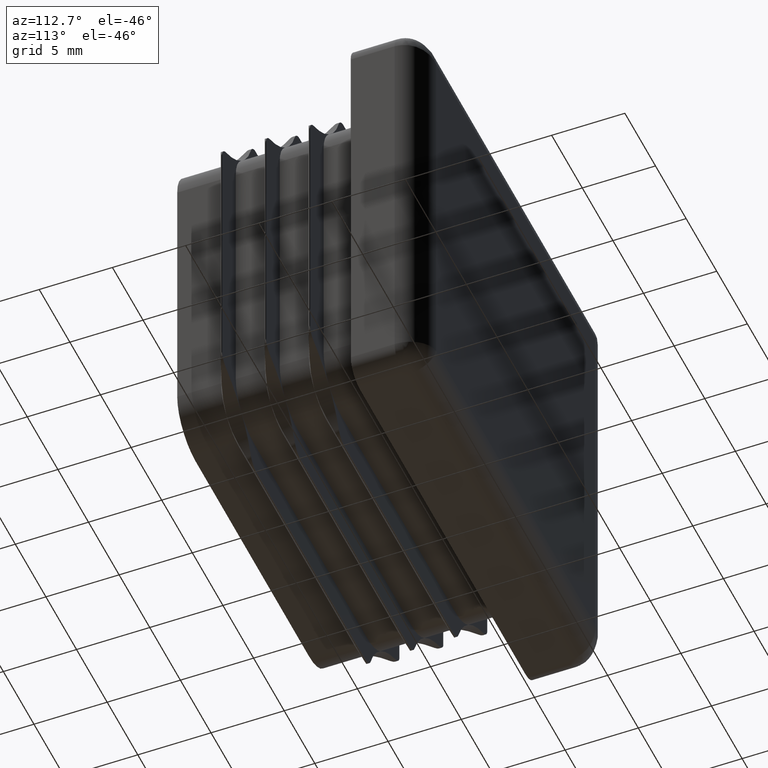
[diagram: clean part render]
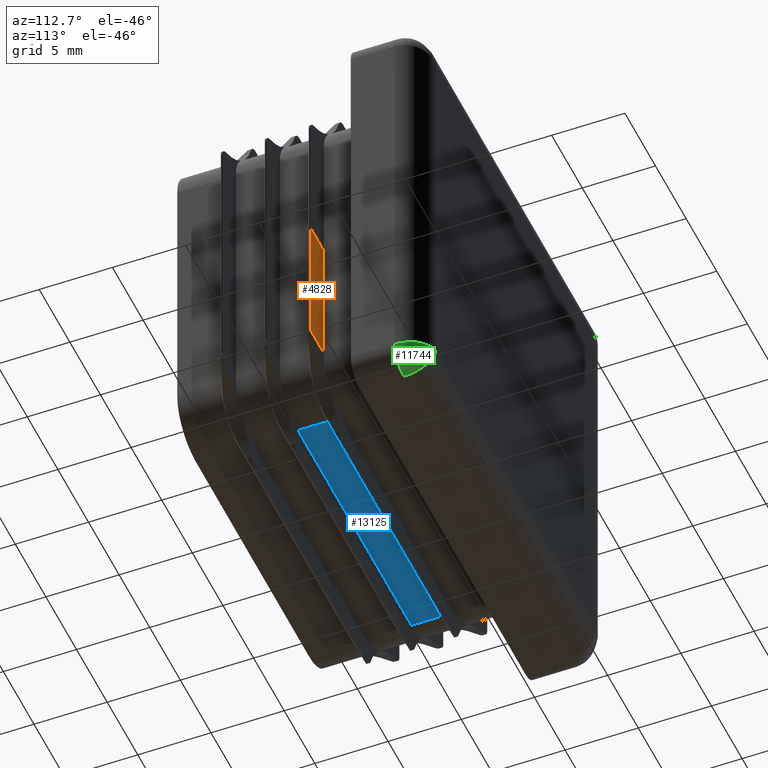
[diagram: same view with three faces highlighted in distinct colors, each labeled with its STEP entity id]
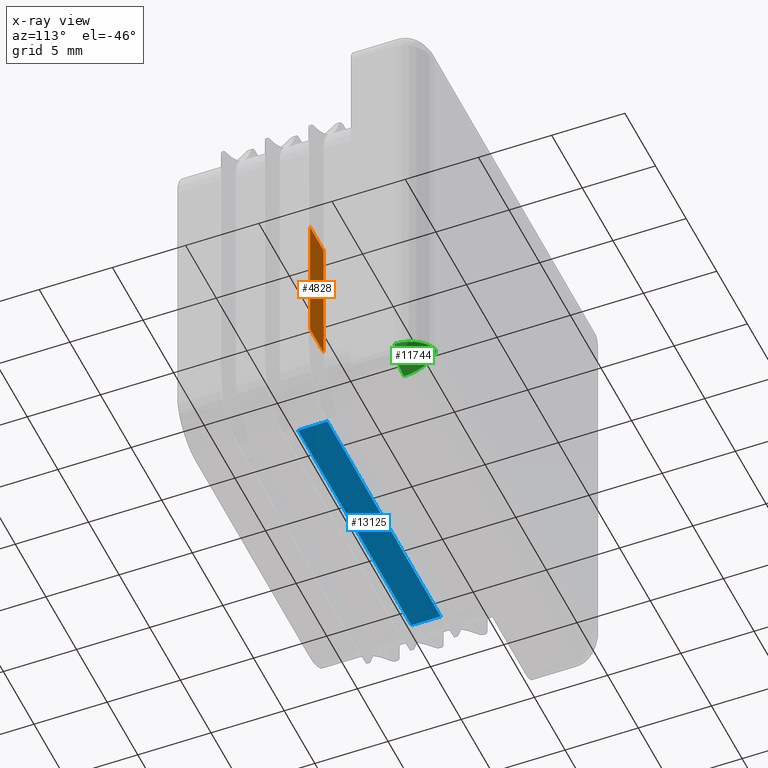
[diagram: x-ray of the same camera — body ghosted, the three highlighted faces saturated]
A machine part, auxiliary view with three faces highlighted in distinct colors.
The next image is the same camera in x-ray (body ghosted, the three faces saturated) — at least one of them is partly hidden behind the body in this view.
Their STEP definitions:

[orange] entity #4828 — the highlighted planar face has unit normal (0, -1, -0).
#811 = LINE ( 'NONE', #4182, #12951 ) ;
#1045 = CARTESIAN_POINT ( 'NONE',  ( 14.45000000000000462, -3.000000000000000888, 0.000000000000000000 ) ) ;
#1209 = VECTOR ( 'NONE', #6921, 1000.000000000000000 ) ;
#2073 = DIRECTION ( 'NONE',  ( 0.000000000000000000, 0.000000000000000000, -1.000000000000000000 ) ) ;
#2100 = CARTESIAN_POINT ( 'NONE',  ( 14.45000000000000817, -3.000000000000000888, -9.147225513525128804 ) ) ;
#2140 = CARTESIAN_POINT ( 'NONE',  ( 12.24999999999998046, -3.000000000000000888, 0.000000000000000000 ) ) ;
#2245 = CARTESIAN_POINT ( 'NONE',  ( 14.40981028720145574, -3.000000000000000888, -9.249999999999998224 ) ) ;
#2859 = LINE ( 'NONE', #18151, #10047 ) ;
#3771 = CARTESIAN_POINT ( 'NONE',  ( 12.24999999999998401, -3.000000000000000888, -9.249999999999998224 ) ) ;
#4182 = CARTESIAN_POINT ( 'NONE',  ( 14.45000000000000462, -3.000000000000000888, 0.000000000000000000 ) ) ;
#4506 = ORIENTED_EDGE ( 'NONE', *, *, #17898, .F. ) ;
#4828 = ADVANCED_FACE ( 'NONE', ( #18133 ), #19470, .F. ) ;
#5117 = ORIENTED_EDGE ( 'NONE', *, *, #13539, .T. ) ;
#5131 = EDGE_CURVE ( 'NONE', #8771, #5785, #18879, .T. ) ;
#5507 = LINE ( 'NONE', #2140, #9935 ) ;
#5785 = VERTEX_POINT ( 'NONE', #2245 ) ;
#6832 = DIRECTION ( 'NONE',  ( 0.000000000000000000, 1.000000000000000000, 0.000000000000000000 ) ) ;
#6921 = DIRECTION ( 'NONE',  ( -1.000000000000000000, 0.000000000000000000, 0.000000000000000000 ) ) ;
#8771 = VERTEX_POINT ( 'NONE', #2100 ) ;
#9282 = VERTEX_POINT ( 'NONE', #1045 ) ;
#9935 = VECTOR ( 'NONE', #11580, 1000.000000000000000 ) ;
#9997 = CARTESIAN_POINT ( 'NONE',  ( 12.24999999999998046, -3.000000000000000888, 0.000000000000000000 ) ) ;
#10047 = VECTOR ( 'NONE', #10341, 1000.000000000000000 ) ;
#10341 = DIRECTION ( 'NONE',  ( -1.000000000000000000, 0.000000000000000000, 0.000000000000000000 ) ) ;
#11378 = LINE ( 'NONE', #3771, #1209 ) ;
#11513 = AXIS2_PLACEMENT_3D ( 'NONE', #9997, #14699, #2073 ) ;
#11580 = DIRECTION ( 'NONE',  ( 4.688441826964345284E-16, 0.000000000000000000, -1.000000000000000000 ) ) ;
#11739 = EDGE_CURVE ( 'NONE', #13728, #13640, #5507, .T. ) ;
#11789 = AXIS2_PLACEMENT_3D ( 'NONE', #16295, #6832, #18022 ) ;
#12190 = DIRECTION ( 'NONE',  ( 4.688441826964345284E-16, 0.000000000000000000, -1.000000000000000000 ) ) ;
#12951 = VECTOR ( 'NONE', #12190, 1000.000000000000000 ) ;
#13539 = EDGE_CURVE ( 'NONE', #5785, #13640, #11378, .T. ) ;
#13640 = VERTEX_POINT ( 'NONE', #16242 ) ;
#13728 = VERTEX_POINT ( 'NONE', #17008 ) ;
#14699 = DIRECTION ( 'NONE',  ( 0.000000000000000000, -1.000000000000000000, -0.000000000000000000 ) ) ;
#15376 = EDGE_LOOP ( 'NONE', ( #17140, #20365, #5117, #16506, #4506 ) ) ;
#16242 = CARTESIAN_POINT ( 'NONE',  ( 12.24999999999998224, -3.000000000000004441, -9.249999999999998224 ) ) ;
#16295 = CARTESIAN_POINT ( 'NONE',  ( 13.50000000000008171, -3.000000000000000888, -8.834975613604997946 ) ) ;
#16506 = ORIENTED_EDGE ( 'NONE', *, *, #11739, .F. ) ;
#17008 = CARTESIAN_POINT ( 'NONE',  ( 12.24999999999998224, -3.000000000000000888, 0.000000000000000000 ) ) ;
#17140 = ORIENTED_EDGE ( 'NONE', *, *, #20026, .T. ) ;
#17898 = EDGE_CURVE ( 'NONE', #9282, #13728, #2859, .T. ) ;
#18022 = DIRECTION ( 'NONE',  ( 1.040834085586086939E-14, 0.000000000000000000, -1.000000000000000000 ) ) ;
#18133 = FACE_OUTER_BOUND ( 'NONE', #15376, .T. ) ;
#18151 = CARTESIAN_POINT ( 'NONE',  ( 12.24999999999998046, -3.000000000000000888, 0.000000000000000000 ) ) ;
#18879 = CIRCLE ( 'NONE', #11789, 0.9999999999999974465 ) ;
#19470 = PLANE ( 'NONE',  #11513 ) ;
#20026 = EDGE_CURVE ( 'NONE', #9282, #8771, #811, .T. ) ;
#20365 = ORIENTED_EDGE ( 'NONE', *, *, #5131, .T. ) ;

[blue] entity #13125 — the highlighted planar face has unit normal (-0, 0, 1).
#178 = VECTOR ( 'NONE', #11281, 1000.000000000000000 ) ;
#241 = CARTESIAN_POINT ( 'NONE',  ( 9.249999999999987566, -6.000000000000000888, -12.25000000000002309 ) ) ;
#744 = CARTESIAN_POINT ( 'NONE',  ( 9.249999999999987566, -13.00000000000000000, -12.24999999999999645 ) ) ;
#833 = ORIENTED_EDGE ( 'NONE', *, *, #12604, .F. ) ;
#1748 = DIRECTION ( 'NONE',  ( -1.000000000000000000, 0.000000000000000000, -1.875376730785738952E-16 ) ) ;
#2030 = VERTEX_POINT ( 'NONE', #5568 ) ;
#2815 = CARTESIAN_POINT ( 'NONE',  ( -9.250000000000001776, -13.00000000000000000, -12.24999999999999645 ) ) ;
#3212 = VERTEX_POINT ( 'NONE', #3981 ) ;
#3379 = CARTESIAN_POINT ( 'NONE',  ( 9.249999999999987566, -4.000000000000000000, -12.24999999999999112 ) ) ;
#3641 = ORIENTED_EDGE ( 'NONE', *, *, #4928, .T. ) ;
#3981 = CARTESIAN_POINT ( 'NONE',  ( 9.249999999999987566, -6.000000000000004441, -12.24999999999999645 ) ) ;
#4928 = EDGE_CURVE ( 'NONE', #2030, #15601, #6771, .T. ) ;
#5235 = LINE ( 'NONE', #744, #13870 ) ;
#5568 = CARTESIAN_POINT ( 'NONE',  ( -9.250000000000001776, -6.000000000000002665, -12.24999999999999645 ) ) ;
#6646 = CARTESIAN_POINT ( 'NONE',  ( 9.249999999999987566, -4.000000000000001776, -12.24999999999999645 ) ) ;
#6771 = LINE ( 'NONE', #11220, #9963 ) ;
#7180 = LINE ( 'NONE', #241, #178 ) ;
#7356 = DIRECTION ( 'NONE',  ( 1.000000000000000000, 0.000000000000000000, 0.000000000000000000 ) ) ;
#7645 = CARTESIAN_POINT ( 'NONE',  ( -9.249999999999998224, -4.000000000000000000, -12.24999999999999467 ) ) ;
#9963 = VECTOR ( 'NONE', #11354, 1000.000000000000000 ) ;
#11220 = CARTESIAN_POINT ( 'NONE',  ( -9.250000000000001776, -13.00000000000000000, -12.24999999999999645 ) ) ;
#11281 = DIRECTION ( 'NONE',  ( -1.000000000000000000, 0.000000000000000000, -1.875376730785738952E-16 ) ) ;
#11354 = DIRECTION ( 'NONE',  ( -0.000000000000000000, 1.000000000000000000, -0.000000000000000000 ) ) ;
#12390 = ORIENTED_EDGE ( 'NONE', *, *, #16412, .F. ) ;
#12604 = EDGE_CURVE ( 'NONE', #3212, #13380, #5235, .T. ) ;
#13053 = EDGE_LOOP ( 'NONE', ( #16856, #3641, #12390, #833 ) ) ;
#13125 = ADVANCED_FACE ( 'NONE', ( #18317 ), #17039, .F. ) ;
#13380 = VERTEX_POINT ( 'NONE', #6646 ) ;
#13870 = VECTOR ( 'NONE', #18083, 1000.000000000000000 ) ;
#14297 = VECTOR ( 'NONE', #1748, 1000.000000000000000 ) ;
#15002 = AXIS2_PLACEMENT_3D ( 'NONE', #2815, #15407, #7356 ) ;
#15266 = EDGE_CURVE ( 'NONE', #3212, #2030, #7180, .T. ) ;
#15407 = DIRECTION ( 'NONE',  ( -0.000000000000000000, 0.000000000000000000, 1.000000000000000000 ) ) ;
#15601 = VERTEX_POINT ( 'NONE', #7645 ) ;
#16412 = EDGE_CURVE ( 'NONE', #13380, #15601, #17777, .T. ) ;
#16856 = ORIENTED_EDGE ( 'NONE', *, *, #15266, .T. ) ;
#17039 = PLANE ( 'NONE',  #15002 ) ;
#17777 = LINE ( 'NONE', #3379, #14297 ) ;
#18083 = DIRECTION ( 'NONE',  ( -0.000000000000000000, 1.000000000000000000, -0.000000000000000000 ) ) ;
#18317 = FACE_OUTER_BOUND ( 'NONE', #13053, .T. ) ;

[green] entity #11744 — the highlighted face is a freeform B-spline surface patch.
#21 = ORIENTED_EDGE ( 'NONE', *, *, #13621, .F. ) ;
#339 = CARTESIAN_POINT ( 'NONE',  ( 14.22909352222534807, 4.599333602520843556, -13.30727338055632281 ) ) ;
#385 =( BOUNDED_CURVE ( )  B_SPLINE_CURVE ( 3, ( #5855, #12269, #10823, #18627 ),
 .UNSPECIFIED., .F., .F. ) 
 B_SPLINE_CURVE_WITH_KNOTS ( ( 4, 4 ),
 ( 0.000000000000000000, 1.570796326794896558 ),
 .UNSPECIFIED. ) 
 CURVE ( )  GEOMETRIC_REPRESENTATION_ITEM ( )  RATIONAL_B_SPLINE_CURVE ( ( 1.000000000000000000, 0.8047378541243649375, 0.8047378541243649375, 1.000000000000000000 ) ) 
 REPRESENTATION_ITEM ( '' )  );
#413 = CARTESIAN_POINT ( 'NONE',  ( 14.59021528821069147, 4.219979528330784824, -13.39755382205265732 ) ) ;
#439 = CARTESIAN_POINT ( 'NONE',  ( 13.00000000000000000, 5.000000000000000000, -12.99999999999999112 ) ) ;
#546 = CARTESIAN_POINT ( 'NONE',  ( 13.48400832844308894, 3.518565054566722416, -14.93603331377240018 ) ) ;
#1353 = EDGE_LOOP ( 'NONE', ( #21, #4677, #17561 ) ) ;
#1982 = CARTESIAN_POINT ( 'NONE',  ( 13.30727338055633346, 4.599333602520846220, -14.22909352222533208 ) ) ;
#2058 = CARTESIAN_POINT ( 'NONE',  ( 15.00000000000000178, 3.000000000000000000, -13.49999999999999112 ) ) ;
#2197 = CARTESIAN_POINT ( 'NONE',  ( 14.73566316099949880, 4.002301403747618558, -13.43391579024986981 ) ) ;
#2288 = DIRECTION ( 'NONE',  ( 0.000000000000000000, -1.000000000000000000, 0.000000000000000000 ) ) ;
#2369 = CARTESIAN_POINT ( 'NONE',  ( 13.49999999999999822, 3.000000000000000000, -13.49999999999999289 ) ) ;
#2667 = CARTESIAN_POINT ( 'NONE',  ( 13.49999999999999822, 3.000000000000000000, -14.99999999999999289 ) ) ;
#3631 = CARTESIAN_POINT ( 'NONE',  ( 13.25180946843706131, 4.747572812742460791, -14.00723787374815288 ) ) ;
#3692 = CARTESIAN_POINT ( 'NONE',  ( 13.49677695196014326, 3.261796233497789466, -14.98710780784050378 ) ) ;
#3753 = CARTESIAN_POINT ( 'NONE',  ( 15.00000000000000178, 2.999999999999999556, -14.99999999999999112 ) ) ;
#4677 = ORIENTED_EDGE ( 'NONE', *, *, #11868, .T. ) ;
#5170 = CARTESIAN_POINT ( 'NONE',  ( 14.89785218005008716, 3.644431387049242410, -13.47446304501250403 ) ) ;
#5229 = CARTESIAN_POINT ( 'NONE',  ( 14.00723787374822038, 4.747572812742435033, -13.25180946843705065 ) ) ;
#5404 = CARTESIAN_POINT ( 'NONE',  ( 14.17157287525381015, 5.000000000000001776, -13.29289321881344321 ) ) ;
#5855 = CARTESIAN_POINT ( 'NONE',  ( 13.49999999999999822, 3.000000000000000000, -14.99999999999999289 ) ) ;
#6690 = CARTESIAN_POINT ( 'NONE',  ( 13.37669339561174731, 4.321653542299216610, -14.50677358244696258 ) ) ;
#6903 = CARTESIAN_POINT ( 'NONE',  ( 13.50000000000000178, 3.000000000000000000, -14.99999999999999112 ) ) ;
#7039 = CARTESIAN_POINT ( 'NONE',  ( 13.06546163104478531, 5.000000000000000000, -13.26184652417912524 ) ) ;
#7244 = FACE_OUTER_BOUND ( 'NONE', #1353, .T. ) ;
#7592 = CARTESIAN_POINT ( 'NONE',  ( 13.00000000000000000, 5.000000000000000000, -12.99999999999999112 ) ) ;
#8276 = CARTESIAN_POINT ( 'NONE',  ( 14.50677358244697679, 4.321653542299213058, -13.37669339561173665 ) ) ;
#8413 = CARTESIAN_POINT ( 'NONE',  ( 13.39755382205266798, 4.219979528330773277, -14.59021528821068792 ) ) ;
#8467 = CARTESIAN_POINT ( 'NONE',  ( 14.57850611585091549, 4.337851778722815688, -14.57850611585099010 ) ) ;
#8543 = CARTESIAN_POINT ( 'NONE',  ( 13.47446304501251468, 3.644431387049255733, -14.89785218005007117 ) ) ;
#8620 = CARTESIAN_POINT ( 'NONE',  ( 13.00000000000000355, 5.000000000000000000, -12.99999999999999112 ) ) ;
#8646 = CARTESIAN_POINT ( 'NONE',  ( 15.00000000000000000, 3.000000000000000000, -13.49999999999999289 ) ) ;
#8669 = EDGE_CURVE ( 'NONE', #15516, #14994, #17058, .T. ) ;
#8825 = CARTESIAN_POINT ( 'NONE',  ( 13.52349585571214874, 4.947945317302708368, -13.13087396392801942 ) ) ;
#9856 = CARTESIAN_POINT ( 'NONE',  ( 13.86849808255897365, 4.871239223148132069, -13.86849808255889549 ) ) ;
#10128 = CARTESIAN_POINT ( 'NONE',  ( 14.47512791244881392, 4.456070975774514054, -14.47512791244873398 ) ) ;
#10823 = CARTESIAN_POINT ( 'NONE',  ( 13.29289321881345387, 4.999999999999999112, -14.17157287525379772 ) ) ;
#11428 = CARTESIAN_POINT ( 'NONE',  ( 14.76676386596492740, 4.041650783308578632, -14.76676386596482082 ) ) ;
#11508 = CARTESIAN_POINT ( 'NONE',  ( 13.43391579024988047, 4.002301403747636321, -14.73566316099947571 ) ) ;
#11640 = CARTESIAN_POINT ( 'NONE',  ( 14.93603331377240728, 3.518565054566740180, -13.48400832844310671 ) ) ;
#11708 = CARTESIAN_POINT ( 'NONE',  ( 14.96738104819227466, 3.454858333943222171, -14.96738104819229243 ) ) ;
#11744 = ADVANCED_FACE ( 'NONE', ( #7244 ), #15118, .T. ) ;
#11868 = EDGE_CURVE ( 'NONE', #15912, #14994, #385, .T. ) ;
#11914 = CARTESIAN_POINT ( 'NONE',  ( 13.13087396392803008, 4.947945317302687940, -13.52349585571218427 ) ) ;
#12269 = CARTESIAN_POINT ( 'NONE',  ( 13.50000000000000178, 4.171572875253809265, -14.99999999999999289 ) ) ;
#13227 = CARTESIAN_POINT ( 'NONE',  ( 14.84930378278237662, 3.862933231318105953, -14.84930378278233754 ) ) ;
#13305 = CARTESIAN_POINT ( 'NONE',  ( 14.98710780784051799, 3.261796233497769482, -13.49677695196010418 ) ) ;
#13621 = EDGE_CURVE ( 'NONE', #15912, #15516, #16362, .T. ) ;
#13637 = CARTESIAN_POINT ( 'NONE',  ( 13.26184652417918564, 4.999999999999999112, -13.06546163104478708 ) ) ;
#14616 = CARTESIAN_POINT ( 'NONE',  ( 14.99999999108476700, 3.229445146648382892, -14.99999999108478654 ) ) ;
#14686 = CARTESIAN_POINT ( 'NONE',  ( 13.67928185404637098, 4.924992851440382680, -13.67928185404604058 ) ) ;
#14884 = CARTESIAN_POINT ( 'NONE',  ( 13.44941648749877494, 3.886302342411098287, -14.79766594999506069 ) ) ;
#14994 = VERTEX_POINT ( 'NONE', #7592 ) ;
#15118 =( BOUNDED_SURFACE ( )  B_SPLINE_SURFACE ( 3, 2, ( 
 ( #6903, #3753, #2058 ),
 ( #19307, #14616, #17950 ),
 ( #3692, #11708, #13305 ),
 ( #546, #13227, #11640 ),
 ( #8543, #11428, #5170 ),
 ( #14884, #8467, #17870 ),
 ( #11508, #10128, #2197 ),
 ( #8413, #16221, #413 ),
 ( #6690, #17756, #8276 ),
 ( #1982, #9856, #339 ),
 ( #3631, #14686, #5229 ),
 ( #11914, #18087, #8825 ),
 ( #7039, #19865, #13637 ),
 ( #18289, #8620, #19660 ) ),
 .UNSPECIFIED., .F., .F., .T. ) 
 B_SPLINE_SURFACE_WITH_KNOTS ( ( 4, 2, 2, 2, 2, 2, 4 ),
 ( 3, 3 ),
 ( 6.283185307179586232, 6.479534848028948524, 6.675884388878310816, 6.872233929727672219, 7.068583470577034511, 7.461282552275758206, 7.853981633974482790 ),
 ( 0.000000000000000000, 1.000000000000000000 ),
 .UNSPECIFIED. ) 
 GEOMETRIC_REPRESENTATION_ITEM ( )  RATIONAL_B_SPLINE_SURFACE ( (
 ( 1.000000000000000000, 0.7071067811865471286, 1.000000000000000000),
 ( 1.000000000000000000, 0.7070717008705400541, 1.000000000000000000),
 ( 1.000000000000000000, 0.7117460391535117559, 1.000000000000000000),
 ( 1.000000000000000000, 0.7291288573898047076, 1.000000000000000000),
 ( 1.000000000000000000, 0.7418334672881641279, 1.000000000000000000),
 ( 1.000000000000000000, 0.7723967724090397002, 1.000000000000000000),
 ( 1.000000000000000000, 0.7902180514827540359, 1.000000000000000000),
 ( 1.000000000000000000, 0.8275942267605864711, 1.000000000000000000),
 ( 1.000000000000000000, 0.8471316911967853303, 1.000000000000000000),
 ( 1.000000000000000000, 0.9038128289597436860, 1.000000000000000000),
 ( 1.000000000000000000, 0.9386556746367761273, 1.000000000000000000),
 ( 1.000000000000000000, 0.9867291651255367668, 1.000000000000000000),
 ( 1.000000000000000000, 1.000158598892032291, 1.000000000000000000),
 ( 1.000000000000000000, 1.000000000000000000, 1.000000000000000000) ) ) 
 REPRESENTATION_ITEM ( '' )  SURFACE ( )  );
#15516 = VERTEX_POINT ( 'NONE', #18329 ) ;
#15912 = VERTEX_POINT ( 'NONE', #2667 ) ;
#16221 = CARTESIAN_POINT ( 'NONE',  ( 14.26722595265662186, 4.642399879337944846, -14.26722595265666982 ) ) ;
#16362 = CIRCLE ( 'NONE', #17683, 1.499999999999999556 ) ;
#17058 =( BOUNDED_CURVE ( )  B_SPLINE_CURVE ( 3, ( #8646, #19548, #5404, #439 ),
 .UNSPECIFIED., .F., .F. ) 
 B_SPLINE_CURVE_WITH_KNOTS ( ( 4, 4 ),
 ( 0.000000000000000000, 1.570796326794897446 ),
 .UNSPECIFIED. ) 
 CURVE ( )  GEOMETRIC_REPRESENTATION_ITEM ( )  RATIONAL_B_SPLINE_CURVE ( ( 1.000000000000000000, 0.8047378541243648264, 0.8047378541243648264, 1.000000000000000000 ) ) 
 REPRESENTATION_ITEM ( '' )  );
#17561 = ORIENTED_EDGE ( 'NONE', *, *, #8669, .F. ) ;
#17683 = AXIS2_PLACEMENT_3D ( 'NONE', #2369, #2288, #19964 ) ;
#17756 = CARTESIAN_POINT ( 'NONE',  ( 14.16316994876157587, 4.712569180173952432, -14.16316994876159896 ) ) ;
#17870 = CARTESIAN_POINT ( 'NONE',  ( 14.79766594999506424, 3.886302342411106281, -13.44941648749876428 ) ) ;
#17950 = CARTESIAN_POINT ( 'NONE',  ( 15.00000000000000178, 3.130901116873742840, -13.49999999993456434 ) ) ;
#18087 = CARTESIAN_POINT ( 'NONE',  ( 13.33146403732628116, 4.987936888157816995, -13.33146403732657781 ) ) ;
#18289 = CARTESIAN_POINT ( 'NONE',  ( 13.00000000000000178, 5.000000000000000000, -12.99999999999998934 ) ) ;
#18329 = CARTESIAN_POINT ( 'NONE',  ( 15.00000000000000000, 3.000000000000000000, -13.49999999999999289 ) ) ;
#18627 = CARTESIAN_POINT ( 'NONE',  ( 13.00000000000000000, 5.000000000000000000, -12.99999999999999112 ) ) ;
#19307 = CARTESIAN_POINT ( 'NONE',  ( 13.49999999993457500, 3.130901116873725520, -14.99999999999999112 ) ) ;
#19548 = CARTESIAN_POINT ( 'NONE',  ( 15.00000000000000178, 4.171572875253810153, -13.49999999999999112 ) ) ;
#19660 = CARTESIAN_POINT ( 'NONE',  ( 13.00000000000000533, 5.000000000000000000, -12.99999999999999112 ) ) ;
#19865 = CARTESIAN_POINT ( 'NONE',  ( 13.16360286748319730, 4.999999997674066776, -13.16360286748318487 ) ) ;
#19964 = DIRECTION ( 'NONE',  ( 0.000000000000000000, 0.000000000000000000, -1.000000000000000000 ) ) ;